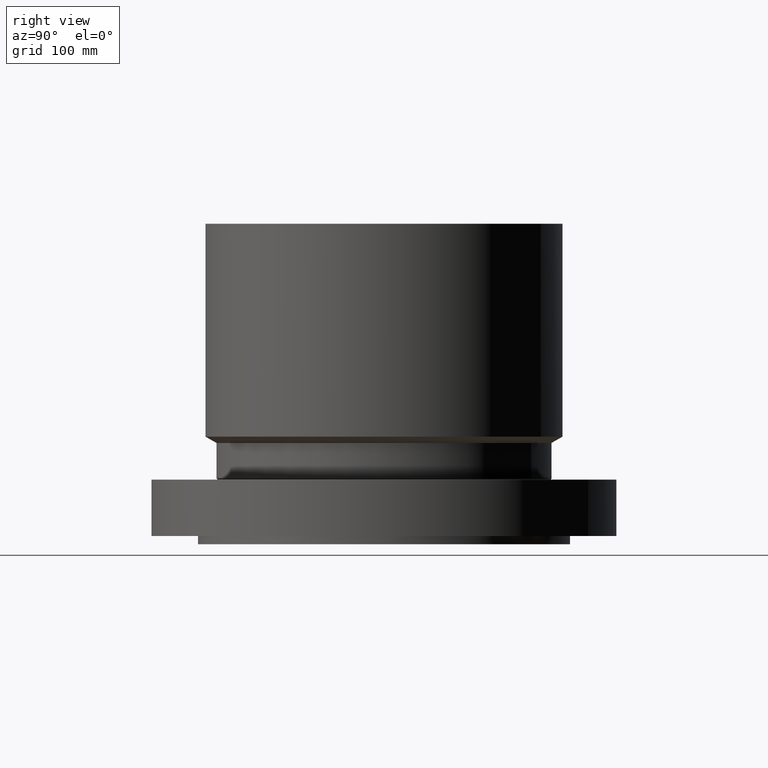
[diagram: clean part render]
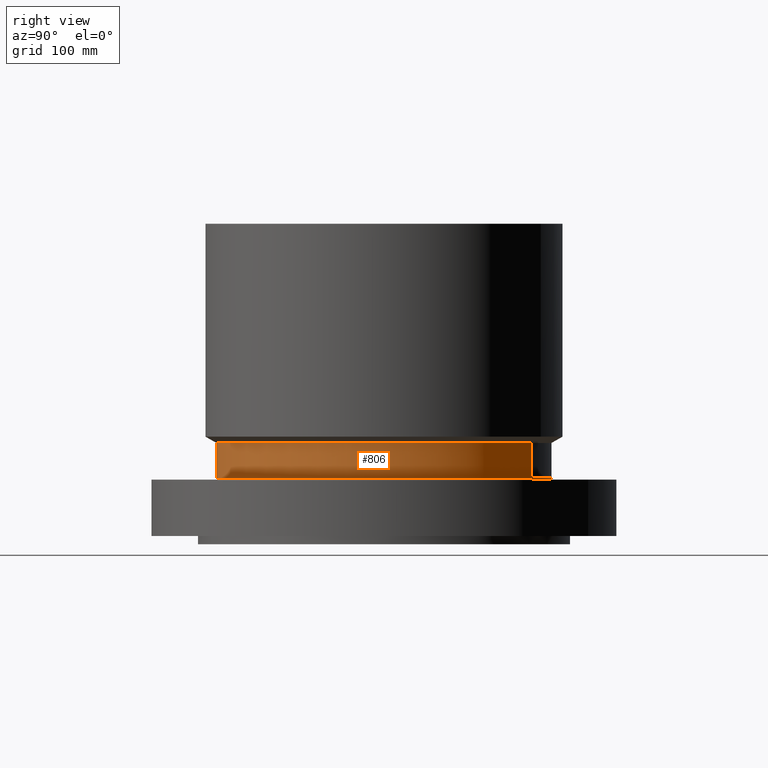
[diagram: same view with one face highlighted and labeled with its STEP entity id]
A machine part, right view. The second image highlights one B-rep face of the part: STEP entity #806.
In plain terms, the highlighted cylindrical surface (partial cylindrical patch) has radius 160.274 mm, axis along (0, 0, -1).
Its self-contained STEP definition (entity closure, byte-faithful):
#747=AXIS2_PLACEMENT_3D('Circle Axis2P3D',#745,#746,$) ;
#779=AXIS2_PLACEMENT_3D('Cylinder Axis2P3D',#776,#777,#778) ;
#790=AXIS2_PLACEMENT_3D('Circle Axis2P3D',#788,#789,$) ;
#742=CARTESIAN_POINT('Vertex',(3.0251751486,5.53754596555,2.16098076212)) ;
#745=CARTESIAN_POINT('Axis2P3D Location',(0.,0.,2.16098076212)) ;
#749=CARTESIAN_POINT('Vertex',(-3.0251751486,-5.53754596555,2.16098076212)) ;
#776=CARTESIAN_POINT('Axis2P3D Location',(0.,0.,5.71850000002)) ;
#781=CARTESIAN_POINT('Line Origine',(3.0251751486,5.53754596555,2.83049038107)) ;
#785=CARTESIAN_POINT('Vertex',(3.0251751486,5.53754596555,3.50000000001)) ;
#788=CARTESIAN_POINT('Axis2P3D Location',(0.,0.,3.50000000001)) ;
#792=CARTESIAN_POINT('Vertex',(-3.0251751486,-5.53754596555,3.50000000001)) ;
#795=CARTESIAN_POINT('Line Origine',(-3.0251751486,-5.53754596555,2.83049038107)) ;
#746=DIRECTION('Axis2P3D Direction',(-0.,0.,0.0393700787402)) ;
#777=DIRECTION('Axis2P3D Direction',(0.,0.,-0.0393700787402)) ;
#778=DIRECTION('Axis2P3D XDirection',(-0.0188750212049,-0.0345504945626,0.)) ;
#782=DIRECTION('Vector Direction',(0.,0.,-0.0393700787402)) ;
#789=DIRECTION('Axis2P3D Direction',(0.,0.,-0.0393700787402)) ;
#796=DIRECTION('Vector Direction',(0.,0.,-0.0393700787402)) ;
#783=VECTOR('Line Direction',#782,0.0393700787402) ;
#797=VECTOR('Line Direction',#796,0.0393700787402) ;
#801=ORIENTED_EDGE('',*,*,#751,.F.) ;
#802=ORIENTED_EDGE('',*,*,#787,.T.) ;
#803=ORIENTED_EDGE('',*,*,#794,.T.) ;
#804=ORIENTED_EDGE('',*,*,#799,.F.) ;
#806=ADVANCED_FACE('PartBody',(#805),#780,.T.) ;
#748=CIRCLE('generated circle',#747,6.31000000003) ;
#791=CIRCLE('generated circle',#790,6.31000000003) ;
#780=CYLINDRICAL_SURFACE('generated cylinder',#779,6.31000000003) ;
#751=EDGE_CURVE('',#743,#750,#748,.F.) ;
#787=EDGE_CURVE('',#743,#786,#784,.F.) ;
#794=EDGE_CURVE('',#786,#793,#791,.T.) ;
#799=EDGE_CURVE('',#750,#793,#798,.F.) ;
#800=EDGE_LOOP('',(#801,#802,#803,#804)) ;
#805=FACE_OUTER_BOUND('',#800,.T.) ;
#784=LINE('Line',#781,#783) ;
#798=LINE('Line',#795,#797) ;
#743=VERTEX_POINT('',#742) ;
#750=VERTEX_POINT('',#749) ;
#786=VERTEX_POINT('',#785) ;
#793=VERTEX_POINT('',#792) ;